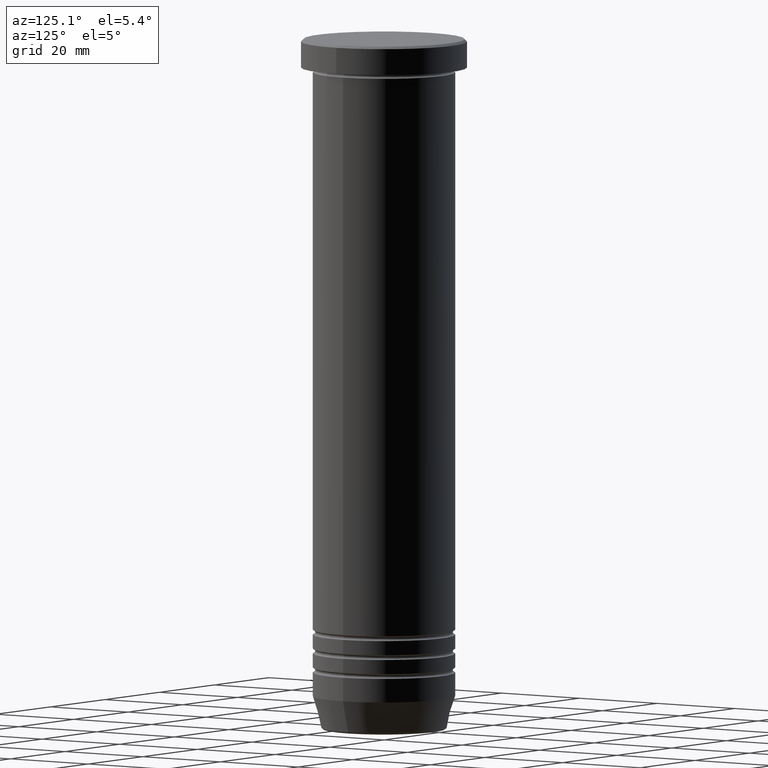
[diagram: clean part render]
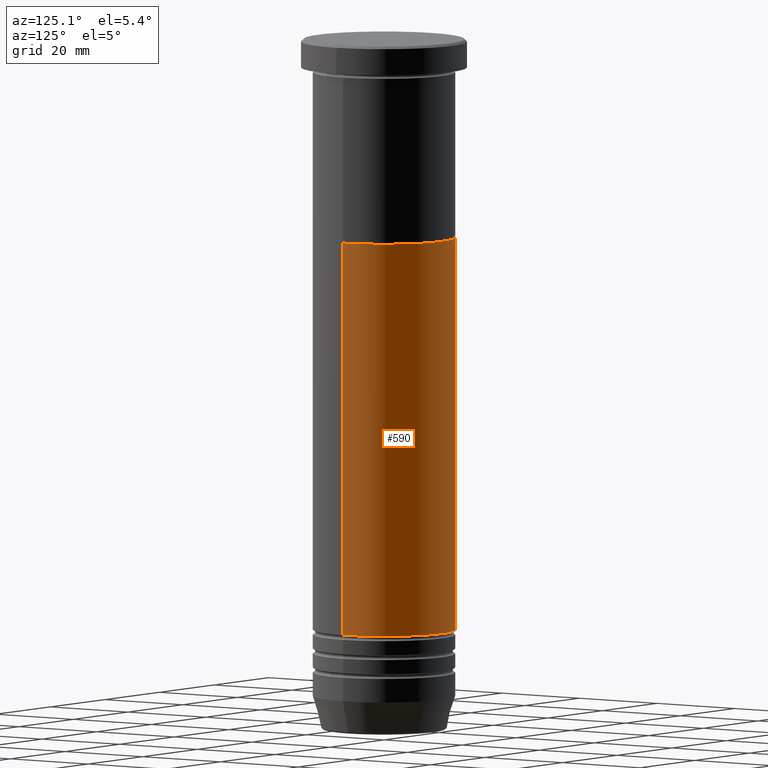
[diagram: same view with one face highlighted and labeled with its STEP entity id]
A machine part, auxiliary view. The second image highlights one B-rep face of the part: STEP entity #590.
In plain terms, the highlighted cylindrical surface (partial cylindrical patch) has radius 15 mm, axis along (-0, -0, 1).
Its self-contained STEP definition (entity closure, byte-faithful):
#13 = LINE ( 'NONE', #132, #915 ) ;
#47 = DIRECTION ( 'NONE',  ( -0.000000000000000000, -0.000000000000000000, 1.000000000000000000 ) ) ;
#50 = VERTEX_POINT ( 'NONE', #572 ) ;
#132 = CARTESIAN_POINT ( 'NONE',  ( -14.99999999999999645, 1.836970198721029194E-15, 0.000000000000000000 ) ) ;
#142 = CARTESIAN_POINT ( 'NONE',  ( 14.99999999999999645, 0.000000000000000000, 0.000000000000000000 ) ) ;
#256 = EDGE_CURVE ( 'NONE', #722, #740, #13, .T. ) ;
#272 = FACE_OUTER_BOUND ( 'NONE', #457, .T. ) ;
#307 = CARTESIAN_POINT ( 'NONE',  ( 0.000000000000000000, 0.000000000000000000, -41.99999999999999289 ) ) ;
#376 = ORIENTED_EDGE ( 'NONE', *, *, #1102, .F. ) ;
#457 = EDGE_LOOP ( 'NONE', ( #575, #678, #376, #709 ) ) ;
#513 = AXIS2_PLACEMENT_3D ( 'NONE', #307, #999, #912 ) ;
#518 = CARTESIAN_POINT ( 'NONE',  ( 15.00000000000000000, 0.000000000000000000, -41.99999999999999289 ) ) ;
#522 = EDGE_CURVE ( 'NONE', #50, #722, #788, .T. ) ;
#563 = CIRCLE ( 'NONE', #513, 15.00000000000000000 ) ;
#572 = CARTESIAN_POINT ( 'NONE',  ( 14.99999999999999112, 0.000000000000000000, -124.9999999999999716 ) ) ;
#575 = ORIENTED_EDGE ( 'NONE', *, *, #522, .T. ) ;
#583 = AXIS2_PLACEMENT_3D ( 'NONE', #878, #707, #622 ) ;
#584 = CARTESIAN_POINT ( 'NONE',  ( -15.00000000000000000, 1.836970198721029589E-15, -41.99999999999999289 ) ) ;
#590 = ADVANCED_FACE ( 'NONE', ( #272 ), #630, .T. ) ;
#622 = DIRECTION ( 'NONE',  ( 1.000000000000000000, 0.000000000000000000, 0.000000000000000000 ) ) ;
#630 = CYLINDRICAL_SURFACE ( 'NONE', #934, 14.99999999999999645 ) ;
#638 = DIRECTION ( 'NONE',  ( 1.000000000000000000, 0.000000000000000000, 0.000000000000000000 ) ) ;
#660 = DIRECTION ( 'NONE',  ( -0.000000000000000000, -0.000000000000000000, 1.000000000000000000 ) ) ;
#678 = ORIENTED_EDGE ( 'NONE', *, *, #256, .T. ) ;
#706 = VERTEX_POINT ( 'NONE', #518 ) ;
#707 = DIRECTION ( 'NONE',  ( -0.000000000000000000, -0.000000000000000000, 1.000000000000000000 ) ) ;
#709 = ORIENTED_EDGE ( 'NONE', *, *, #777, .F. ) ;
#718 = DIRECTION ( 'NONE',  ( -0.000000000000000000, -0.000000000000000000, 1.000000000000000000 ) ) ;
#722 = VERTEX_POINT ( 'NONE', #769 ) ;
#740 = VERTEX_POINT ( 'NONE', #584 ) ;
#769 = CARTESIAN_POINT ( 'NONE',  ( -14.99999999999999112, 1.836970198721028800E-15, -124.9999999999999716 ) ) ;
#777 = EDGE_CURVE ( 'NONE', #50, #706, #938, .T. ) ;
#788 = CIRCLE ( 'NONE', #583, 14.99999999999999112 ) ;
#789 = CARTESIAN_POINT ( 'NONE',  ( 0.000000000000000000, 0.000000000000000000, 0.000000000000000000 ) ) ;
#878 = CARTESIAN_POINT ( 'NONE',  ( 0.000000000000000000, 0.000000000000000000, -124.9999999999999716 ) ) ;
#912 = DIRECTION ( 'NONE',  ( 1.000000000000000000, 0.000000000000000000, 0.000000000000000000 ) ) ;
#915 = VECTOR ( 'NONE', #660, 1000.000000000000000 ) ;
#934 = AXIS2_PLACEMENT_3D ( 'NONE', #789, #718, #638 ) ;
#938 = LINE ( 'NONE', #142, #1006 ) ;
#999 = DIRECTION ( 'NONE',  ( -0.000000000000000000, -0.000000000000000000, 1.000000000000000000 ) ) ;
#1006 = VECTOR ( 'NONE', #47, 1000.000000000000000 ) ;
#1102 = EDGE_CURVE ( 'NONE', #706, #740, #563, .T. ) ;